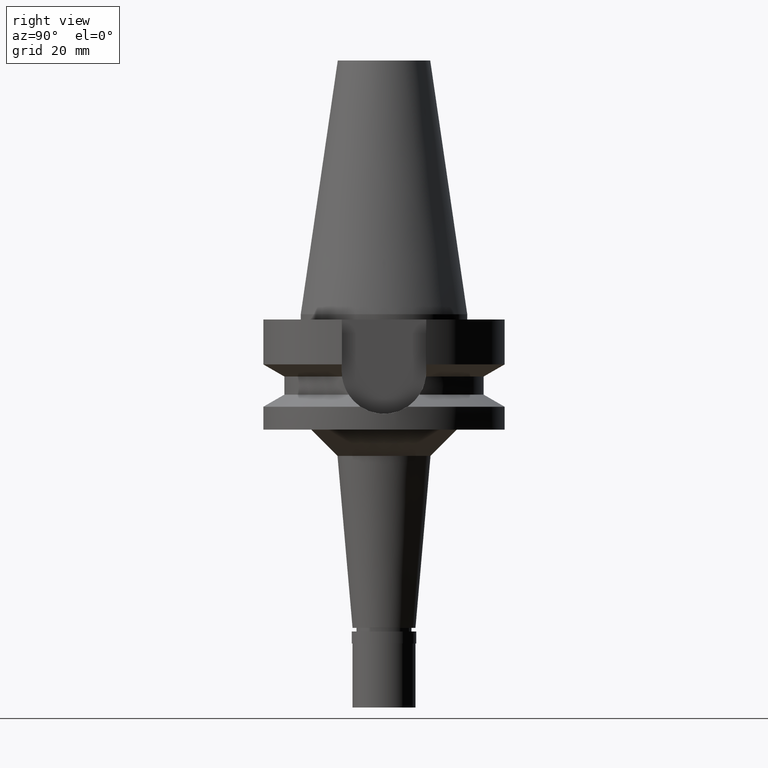
[diagram: clean part render]
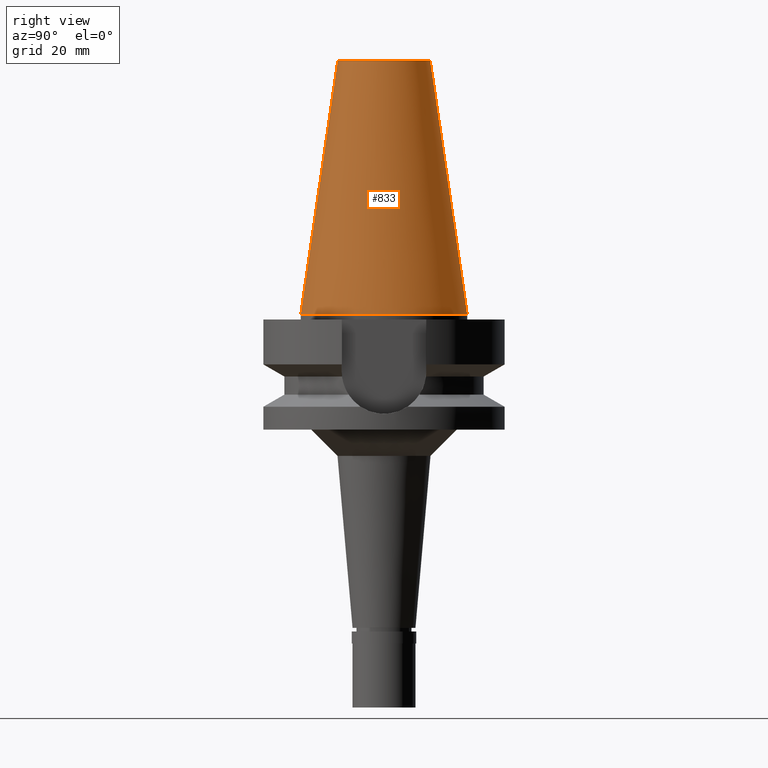
[diagram: same view with one face highlighted and labeled with its STEP entity id]
A machine part, right view. The second image highlights one B-rep face of the part: STEP entity #833.
In plain terms, the highlighted conical surface has half-angle 8.297 deg.
Its self-contained STEP definition (entity closure, byte-faithful):
#48 = EDGE_CURVE ( 'NONE', #2181, #55, #2005, .T. ) ;
#55 = VERTEX_POINT ( 'NONE', #1772 ) ;
#109 = EDGE_LOOP ( 'NONE', ( #237, #680, #2131, #1412 ) ) ;
#237 = ORIENTED_EDGE ( 'NONE', *, *, #1738, .T. ) ;
#403 = CARTESIAN_POINT ( 'NONE',  ( 0.0000000000000000000, 1.521011324540999938E-14, 24.19999999999999929 ) ) ;
#570 = AXIS2_PLACEMENT_3D ( 'NONE', #403, #633, #2233 ) ;
#633 = DIRECTION ( 'NONE',  ( 0.0000000000000000000, 0.0000000000000000000, -1.000000000000000000 ) ) ;
#655 = CARTESIAN_POINT ( 'NONE',  ( 0.0000000000000000000, 1.521011324540999938E-14, -3.694822225953000089E-13 ) ) ;
#680 = ORIENTED_EDGE ( 'NONE', *, *, #775, .T. ) ;
#708 = CARTESIAN_POINT ( 'NONE',  ( 0.0000000000000000000, 8.816791732783000768, 48.39999999999999858 ) ) ;
#775 = EDGE_CURVE ( 'NONE', #2661, #55, #1875, .T. ) ;
#805 = CIRCLE ( 'NONE', #1536, 8.816791732783000768 ) ;
#833 = ADVANCED_FACE ( 'NONE', ( #1919 ), #1561, .T. ) ;
#953 = DIRECTION ( 'NONE',  ( 0.0000000000000000000, 1.000000000000000000, 0.0000000000000000000 ) ) ;
#961 = CARTESIAN_POINT ( 'NONE',  ( 0.0000000000000000000, -8.816791732783000768, 48.39999999999999858 ) ) ;
#1002 = LINE ( 'NONE', #1916, #2059 ) ;
#1032 = DIRECTION ( 'NONE',  ( 0.0000000000000000000, 0.1443043893539925626, -0.9895333461855498891 ) ) ;
#1048 = AXIS2_PLACEMENT_3D ( 'NONE', #655, #2499, #2887 ) ;
#1412 = ORIENTED_EDGE ( 'NONE', *, *, #1560, .F. ) ;
#1536 = AXIS2_PLACEMENT_3D ( 'NONE', #2317, #2096, #953 ) ;
#1560 = EDGE_CURVE ( 'NONE', #2273, #2181, #1002, .T. ) ;
#1561 = CONICAL_SURFACE ( 'NONE', #570, 12.34589586639000025, 0.1448099680379422438 ) ;
#1738 = EDGE_CURVE ( 'NONE', #2273, #2661, #805, .T. ) ;
#1772 = CARTESIAN_POINT ( 'NONE',  ( 0.0000000000000000000, -15.87500000000000000, -1.598721155459999993E-13 ) ) ;
#1875 = LINE ( 'NONE', #961, #2103 ) ;
#1916 = CARTESIAN_POINT ( 'NONE',  ( 0.0000000000000000000, 8.816791732783000768, 48.39999999999999858 ) ) ;
#1919 = FACE_OUTER_BOUND ( 'NONE', #109, .T. ) ;
#2005 = CIRCLE ( 'NONE', #1048, 15.87500000000000000 ) ;
#2059 = VECTOR ( 'NONE', #1032, 1000.000000000000114 ) ;
#2096 = DIRECTION ( 'NONE',  ( 0.0000000000000000000, 0.0000000000000000000, -1.000000000000000000 ) ) ;
#2103 = VECTOR ( 'NONE', #2333, 1000.000000000000114 ) ;
#2131 = ORIENTED_EDGE ( 'NONE', *, *, #48, .F. ) ;
#2181 = VERTEX_POINT ( 'NONE', #2232 ) ;
#2227 = CARTESIAN_POINT ( 'NONE',  ( 0.0000000000000000000, -8.816791732783000768, 48.39999999999999858 ) ) ;
#2232 = CARTESIAN_POINT ( 'NONE',  ( 0.0000000000000000000, 15.87500000000000000, -1.598721155459999993E-13 ) ) ;
#2233 = DIRECTION ( 'NONE',  ( 0.0000000000000000000, -1.000000000000000000, 0.0000000000000000000 ) ) ;
#2273 = VERTEX_POINT ( 'NONE', #708 ) ;
#2317 = CARTESIAN_POINT ( 'NONE',  ( 0.0000000000000000000, 1.521011324540999938E-14, 48.39999999999999858 ) ) ;
#2333 = DIRECTION ( 'NONE',  ( 0.0000000000000000000, -0.1443043893539925626, -0.9895333461855498891 ) ) ;
#2499 = DIRECTION ( 'NONE',  ( 0.0000000000000000000, 0.0000000000000000000, -1.000000000000000000 ) ) ;
#2661 = VERTEX_POINT ( 'NONE', #2227 ) ;
#2887 = DIRECTION ( 'NONE',  ( 0.0000000000000000000, 1.000000000000000000, 0.0000000000000000000 ) ) ;